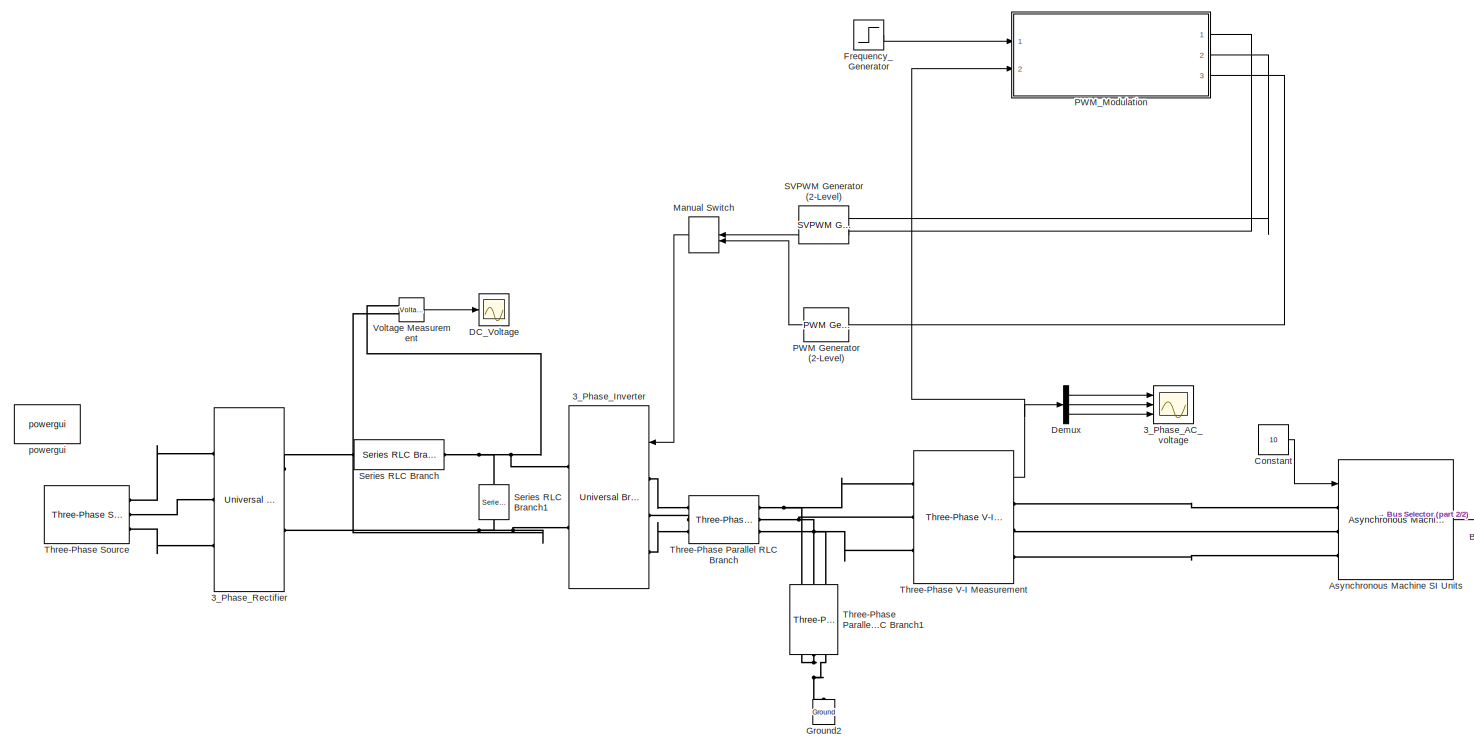
[diagram: root canvas - part 1/2, most of the canvas]
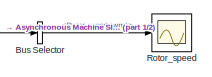
[diagram: root canvas - part 2/2, bottom right region]
MODEL slx_852955038568
KIND model
CONFIG AbsTol = auto
CONFIG FixedStep = 5e-6
CONFIG MaxStep = auto
CONFIG MinStep = auto
CONFIG RelTol = 1e-3
CONFIG SampleTimeConstraint = Unconstrained
CONFIG Solver = FixedStepDiscrete
CONFIG SolverMode = Auto
CONFIG SolverName = FixedStepDiscrete
CONFIG StartTime = 0.0
CONFIG StopTime = 4
BLOCK [Scope] 3_Phase_AC_voltage
  NumInputPorts = 3
  Ports = [3]
  ScopeSpecificationString = Simulink.scopes.TimeScopeBlockCfg('CurrentConfiguration', extmgr.ConfigurationSet(extmgr.Configuration('Core','General UI',true),extmgr.Configuration('Core','Source UI',true),extmgr.Configuration('Sources','WiredSimulink',true,'DataLoggingVariableName','ScopeData2'),extmgr.Configuration('Visuals','Time Domain',true,'SerializedDisplays',{struct('MinYLimReal','-814.89186','MaxYLimReal','944.15894','...<+2888ch>
BLOCK [Reference] 3_Phase_Inverter  REF=powerlib/Power
Electronics/Universal Bridge
  Ports = [1, 0, 0, 0, 0, 3, 2]
  SourceBlock = powerlib/Power\nElectronics/Universal Bridge
  SourceType = Universal Bridge
BLOCK [Reference] 3_Phase_Rectifier  REF=powerlib/Power
Electronics/Universal Bridge
  Ports = [0, 0, 0, 0, 0, 3, 2]
  SourceBlock = powerlib/Power\nElectronics/Universal Bridge
  SourceType = Universal Bridge
BLOCK [Reference] Asynchronous Machine SI Units  REF=powerlib/Machines/Asynchronous Machine
SI Units
  Ports = [1, 1, 0, 0, 0, 3]
  SourceBlock = powerlib/Machines/Asynchronous Machine\nSI Units
  SourceType = Asynchronous Machine
BLOCK [BusSelector] Bus Selector
  OutputSignals = Mechanical.Rotor speed (wm)
  Ports = [1, 1]
BLOCK [Constant] Constant
  Value = 10
BLOCK [Scope] DC_Voltage
  Ports = [1]
  ScopeSpecificationString = Simulink.scopes.TimeScopeBlockCfg('CurrentConfiguration', extmgr.ConfigurationSet(extmgr.Configuration('Core','General UI',true),extmgr.Configuration('Core','Source UI',true),extmgr.Configuration('Sources','WiredSimulink',true,'DataLoggingVariableName','ScopeData1'),extmgr.Configuration('Visuals','Time Domain',true,'SerializedDisplays',{struct('MinYLimReal','-92.27695','MaxYLimReal','830.5009','YL...<+1484ch>
BLOCK [Demux] Demux
  DisplayOption = bar
  Outputs = 3
  Ports = [1, 3]
BLOCK [Step] Frequency_Generator
  After = 10
  Before = 50
  SampleTime = 0
BLOCK [Reference] Ground2  REF=powerlib/Elements/Ground
  Ports = [0, 0, 0, 0, 0, 1]
  SourceBlock = powerlib/Elements/Ground
  SourceType = Ground
BLOCK [ManualSwitch] Manual Switch
BLOCK [Reference] PWM Generator (2-Level)  REF=powerlib_meascontrol/Pulse & Signal
Generators/PWM Generator
(2-Level)
  Ports = [1, 1]
  SourceBlock = powerlib_meascontrol/Pulse & Signal\nGenerators/PWM Generator\n(2-Level)
  SourceType = PWM Generator (2-Level)
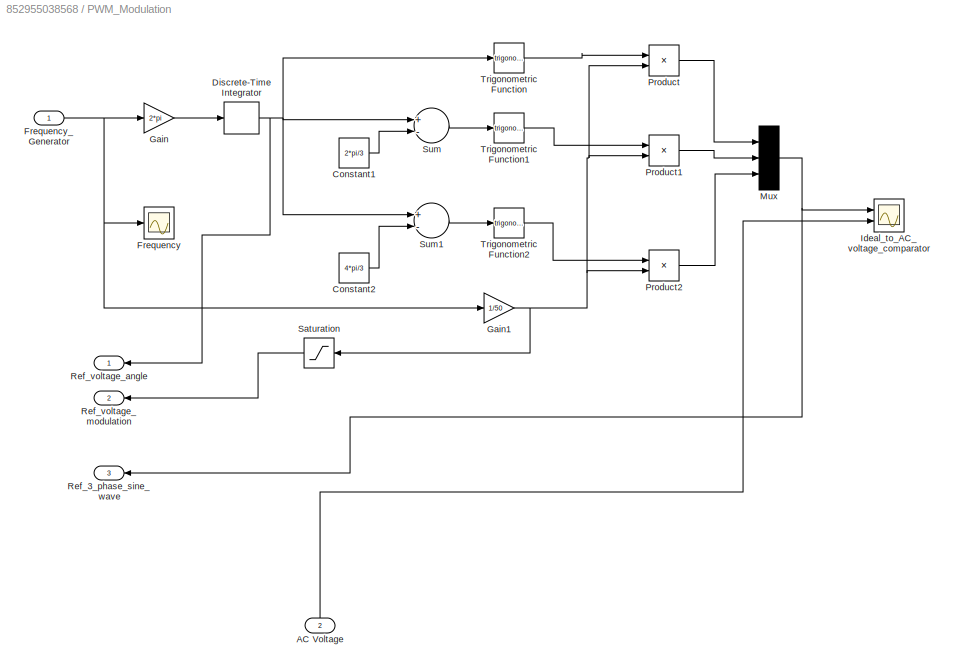
BLOCK [SubSystem] PWM_Modulation 
  Ports = [2, 3]
  RequestExecContextInheritance = off
  Variant = off
BLOCK [Inport] PWM_Modulation /AC Voltage
  IconDisplay = Port number
  Port = 2
BLOCK [Constant] PWM_Modulation /Constant1
  Value = 2*pi/3
BLOCK [Constant] PWM_Modulation /Constant2
  Value = 4*pi/3
BLOCK [DiscreteIntegrator] PWM_Modulation /Discrete-Time Integrator
  ICPrevOutput = DiscIntNeverNeededParam
  ICPrevScaledInput = DiscIntNeverNeededParam
  InitialConditionSetting = State (most efficient)
  Ports = [1, 1]
  SampleTime = 5e-6
BLOCK [Scope] PWM_Modulation /Frequency
  Ports = [1]
  ScopeSpecificationString = Simulink.scopes.TimeScopeBlockCfg('CurrentConfiguration', extmgr.ConfigurationSet(extmgr.Configuration('Core','General UI',true),extmgr.Configuration('Core','Source UI',true),extmgr.Configuration('Sources','WiredSimulink',true,'DataLoggingVariableName','ScopeData1'),extmgr.Configuration('Visuals','Time Domain',true,'SerializedDisplays',{struct('MinYLimReal','5.00000','MaxYLimReal','55.00000','YLab...<+1434ch>
BLOCK [Inport] PWM_Modulation /Frequency_Generator
  IconDisplay = Port number
BLOCK [Gain] PWM_Modulation /Gain
  Gain = 2*pi
  OutDataTypeStr = Inherit: Inherit via internal rule
  ParamDataTypeStr = Inherit: Inherit via internal rule
  SaturateOnIntegerOverflow = off
BLOCK [Gain] PWM_Modulation /Gain1
  Gain = 1/50
  OutDataTypeStr = Inherit: Inherit via internal rule
  ParamDataTypeStr = Inherit: Inherit via internal rule
  SaturateOnIntegerOverflow = off
BLOCK [Scope] PWM_Modulation /Ideal_to_AC_voltage_comparator
  NumInputPorts = 2
  Ports = [2]
  ScopeSpecificationString = Simulink.scopes.TimeScopeBlockCfg('CurrentConfiguration', extmgr.ConfigurationSet(extmgr.Configuration('Core','General UI',true),extmgr.Configuration('Core','Source UI',true),extmgr.Configuration('Sources','WiredSimulink',true,'DataLoggingVariableName','ScopeData1'),extmgr.Configuration('Visuals','Time Domain',true,'SerializedDisplays',{struct('MinYLimReal','-1.25','MaxYLimReal','1.25','YLabelReal...<+2157ch>
BLOCK [Mux] PWM_Modulation /Mux
  DisplayOption = bar
  Inputs = 3
  Ports = [3, 1]
BLOCK [Product] PWM_Modulation /Product
  InputSameDT = off
  OutDataTypeStr = Inherit: Inherit via internal rule
  Ports = [2, 1]
  RndMeth = Floor
  SaturateOnIntegerOverflow = off
BLOCK [Product] PWM_Modulation /Product1
  InputSameDT = off
  OutDataTypeStr = Inherit: Inherit via internal rule
  Ports = [2, 1]
  RndMeth = Floor
  SaturateOnIntegerOverflow = off
BLOCK [Product] PWM_Modulation /Product2
  InputSameDT = off
  OutDataTypeStr = Inherit: Inherit via internal rule
  Ports = [2, 1]
  RndMeth = Floor
  SaturateOnIntegerOverflow = off
BLOCK [Outport] PWM_Modulation /Ref_3_phase_sine_wave
  IconDisplay = Port number
  Port = 3
BLOCK [Outport] PWM_Modulation /Ref_voltage_angle
  IconDisplay = Port number
BLOCK [Outport] PWM_Modulation /Ref_voltage_modulation
  IconDisplay = Port number
  Port = 2
BLOCK [Saturate] PWM_Modulation /Saturation
  InputPortMap = u0
  LowerLimit = 0
  Ports = [1, 1]
  UpperLimit = 1
BLOCK [Sum] PWM_Modulation /Sum
  InputSameDT = off
  Inputs = +-
  OutDataTypeStr = Inherit: Inherit via internal rule
  Ports = [2, 1]
  SaturateOnIntegerOverflow = off
BLOCK [Sum] PWM_Modulation /Sum1
  InputSameDT = off
  Inputs = +-
  OutDataTypeStr = Inherit: Inherit via internal rule
  Ports = [2, 1]
  SaturateOnIntegerOverflow = off
BLOCK [Trigonometry] PWM_Modulation /Trigonometric Function
  Ports = [1, 1]
BLOCK [Trigonometry] PWM_Modulation /Trigonometric Function1
  Ports = [1, 1]
BLOCK [Trigonometry] PWM_Modulation /Trigonometric Function2
  Ports = [1, 1]
BLOCK [Scope] Rotor_speed
  Ports = [1]
  ScopeSpecificationString = Simulink.scopes.TimeScopeBlockCfg('CurrentConfiguration', extmgr.ConfigurationSet(extmgr.Configuration('Core','General UI',true),extmgr.Configuration('Core','Source UI',true),extmgr.Configuration('Sources','WiredSimulink',true),extmgr.Configuration('Visuals','Time Domain',true,'SerializedDisplays',{struct('MinYLimReal','-6.45125','MaxYLimReal','184.52151','YLabelReal','','MinYLimMag','0.00000','Ma...<+1446ch>
BLOCK [Reference] SVPWM Generator (2-Level)  REF=powerlib_meascontrol/Pulse & Signal
Generators/SVPWM Generator
(2-Level)
  Ports = [2, 1]
  SourceBlock = powerlib_meascontrol/Pulse & Signal\nGenerators/SVPWM Generator\n(2-Level)
  SourceType = SVPWM Generator (2-Level)
BLOCK [Reference] Series RLC Branch  REF=powerlib/Elements/Series RLC Branch
  Ports = [0, 0, 0, 0, 0, 1, 1]
  SourceBlock = powerlib/Elements/Series RLC Branch
  SourceType = Series RLC Branch
BLOCK [Reference] Series RLC Branch1  REF=powerlib/Elements/Series RLC Branch
  Ports = [0, 0, 0, 0, 0, 1, 1]
  SourceBlock = powerlib/Elements/Series RLC Branch
  SourceType = Series RLC Branch
BLOCK [Reference] Three-Phase Parallel RLC Branch  REF=powerlib/Elements/Three-Phase
Parallel RLC Branch
  AttributesFormatString = \n
  Ports = [0, 0, 0, 0, 0, 3, 3]
  SourceBlock = powerlib/Elements/Three-Phase\nParallel RLC Branch
  SourceType = Three-Phase Parallel RLC Branch
BLOCK [Reference] Three-Phase Parallel RLC Branch1  REF=powerlib/Elements/Three-Phase
Parallel RLC Branch
  AttributesFormatString = \n
  Ports = [0, 0, 0, 0, 0, 3, 3]
  SourceBlock = powerlib/Elements/Three-Phase\nParallel RLC Branch
  SourceType = Three-Phase Parallel RLC Branch
BLOCK [Reference] Three-Phase Source  REF=powerlib/Electrical
Sources/Three-Phase Source
  Ports = [0, 0, 0, 0, 0, 0, 3]
  SourceBlock = powerlib/Electrical\nSources/Three-Phase Source
  SourceType = Three-Phase Source
BLOCK [Reference] Three-Phase V-I Measurement  REF=powerlib/Measurements/Three-Phase
V-I Measurement
  Ports = [0, 1, 0, 0, 0, 3, 3]
  SourceBlock = powerlib/Measurements/Three-Phase\nV-I Measurement
  SourceType = Three-Phase VI Measurement
BLOCK [Reference] Voltage Measurement  REF=powerlib/Measurements/Voltage Measurement
  Ports = [0, 1, 0, 0, 0, 2]
  SourceBlock = powerlib/Measurements/Voltage Measurement
  SourceType = Voltage Measurement
  UserDataPersistent = on
BLOCK [Reference] powergui  REF=powerlib/powergui
  Ports = []
  Priority = 1
  SourceBlock = powerlib/powergui
  SourceType = PSB option menu block
  UserDataPersistent = on
LINE Asynchronous Machine SI Units:1 -> Bus Selector:1
LINE Bus Selector:1 -> Rotor_speed:1
LINE Constant:1 -> Asynchronous Machine SI Units:1
LINE Demux:1 -> 3_Phase_AC_voltage:1
LINE Demux:2 -> 3_Phase_AC_voltage:2
LINE Demux:3 -> 3_Phase_AC_voltage:3
LINE Frequency_Generator:1 -> PWM_Modulation :1
LINE Manual Switch:1 -> 3_Phase_Inverter:1
LINE PWM Generator (2-Level):1 -> Manual Switch:2
LINE PWM_Modulation /AC Voltage:1 -> PWM_Modulation /Ideal_to_AC_voltage_comparator:2
LINE PWM_Modulation /Constant1:1 -> PWM_Modulation /Sum:2
LINE PWM_Modulation /Constant2:1 -> PWM_Modulation /Sum1:2
NET PWM_Modulation /Discrete-Time Integrator:1 -> PWM_Modulation /Ref_voltage_angle:1, PWM_Modulation /Sum1:1, PWM_Modulation /Sum:1, PWM_Modulation /Trigonometric Function:1
NET PWM_Modulation /Frequency_Generator:1 -> PWM_Modulation /Frequency:1, PWM_Modulation /Gain1:1, PWM_Modulation /Gain:1
NET PWM_Modulation /Gain1:1 -> PWM_Modulation /Product1:2, PWM_Modulation /Product2:2, PWM_Modulation /Product:2, PWM_Modulation /Saturation:1
LINE PWM_Modulation /Gain:1 -> PWM_Modulation /Discrete-Time Integrator:1
NET PWM_Modulation /Mux:1 -> PWM_Modulation /Ideal_to_AC_voltage_comparator:1, PWM_Modulation /Ref_3_phase_sine_wave:1
LINE PWM_Modulation /Product1:1 -> PWM_Modulation /Mux:2
LINE PWM_Modulation /Product2:1 -> PWM_Modulation /Mux:3
LINE PWM_Modulation /Product:1 -> PWM_Modulation /Mux:1
LINE PWM_Modulation /Saturation:1 -> PWM_Modulation /Ref_voltage_modulation:1
LINE PWM_Modulation /Sum1:1 -> PWM_Modulation /Trigonometric Function2:1
LINE PWM_Modulation /Sum:1 -> PWM_Modulation /Trigonometric Function1:1
LINE PWM_Modulation /Trigonometric Function1:1 -> PWM_Modulation /Product1:1
LINE PWM_Modulation /Trigonometric Function2:1 -> PWM_Modulation /Product2:1
LINE PWM_Modulation /Trigonometric Function:1 -> PWM_Modulation /Product:1
LINE PWM_Modulation :1 -> SVPWM Generator (2-Level):2
LINE PWM_Modulation :2 -> SVPWM Generator (2-Level):1
LINE PWM_Modulation :3 -> PWM Generator (2-Level):1
LINE SVPWM Generator (2-Level):1 -> Manual Switch:1
NET Three-Phase V-I Measurement:1 -> Demux:1, PWM_Modulation :2
LINE Voltage Measurement:1 -> DC_Voltage:1
PLINE 3_Phase_Inverter:LConn1 -- Three-Phase Parallel RLC Branch:LConn1
PLINE 3_Phase_Inverter:LConn2 -- Three-Phase Parallel RLC Branch:LConn2
PLINE 3_Phase_Inverter:LConn3 -- Three-Phase Parallel RLC Branch:LConn3
PNET net1: 3_Phase_Inverter:RConn1 -- Series RLC Branch1:LConn1 -- Series RLC Branch:RConn1 -- Voltage Measurement:LConn1
PNET net2: 3_Phase_Inverter:RConn2 -- 3_Phase_Rectifier:RConn2 -- Series RLC Branch1:RConn1 -- Voltage Measurement:LConn2
PLINE 3_Phase_Rectifier:LConn1 -- Three-Phase Source:RConn1
PLINE 3_Phase_Rectifier:LConn2 -- Three-Phase Source:RConn2
PLINE 3_Phase_Rectifier:LConn3 -- Three-Phase Source:RConn3
PLINE 3_Phase_Rectifier:RConn1 -- Series RLC Branch:LConn1
PLINE Asynchronous Machine SI Units:LConn1 -- Three-Phase V-I Measurement:RConn1
PLINE Asynchronous Machine SI Units:LConn2 -- Three-Phase V-I Measurement:RConn2
PLINE Asynchronous Machine SI Units:LConn3 -- Three-Phase V-I Measurement:RConn3
PNET net3: Ground2:LConn1 -- Three-Phase Parallel RLC Branch1:RConn1 -- Three-Phase Parallel RLC Branch1:RConn2 -- Three-Phase Parallel RLC Branch1:RConn3
PNET net4: Three-Phase Parallel RLC Branch1:LConn1 -- Three-Phase Parallel RLC Branch:RConn1 -- Three-Phase V-I Measurement:LConn1
PNET net5: Three-Phase Parallel RLC Branch1:LConn2 -- Three-Phase Parallel RLC Branch:RConn2 -- Three-Phase V-I Measurement:LConn2
PNET net6: Three-Phase Parallel RLC Branch1:LConn3 -- Three-Phase Parallel RLC Branch:RConn3 -- Three-Phase V-I Measurement:LConn3
note: NET lines group one-source signal fan-out (src -> all destinations, sorted); 1:1 wires keep LINE; PNET lines group multi-terminal physical nets as a canonical sorted terminal list (undirected conserving connections); 2-terminal nets keep the pairwise PLINE form
